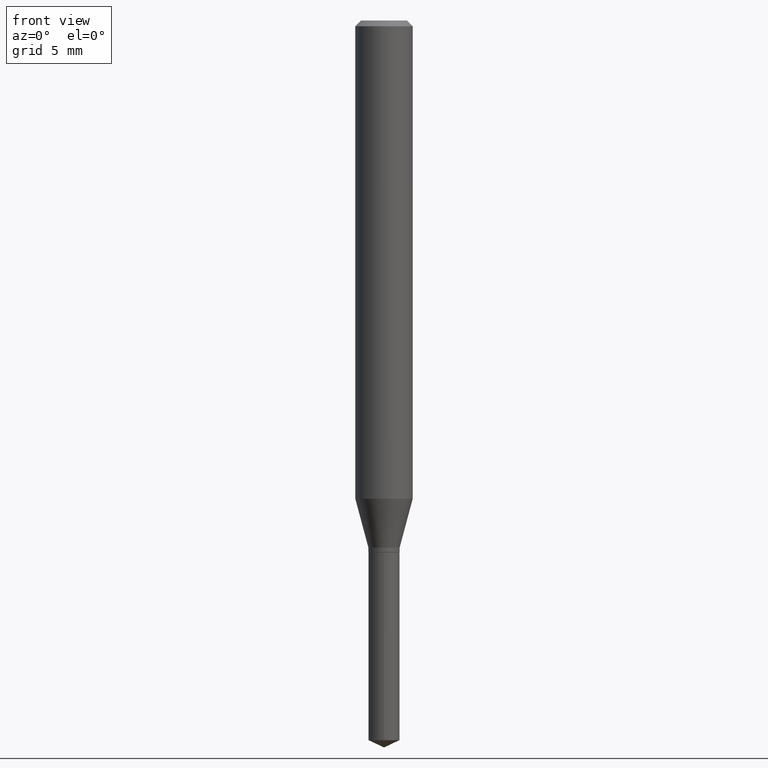
[diagram: clean part render]
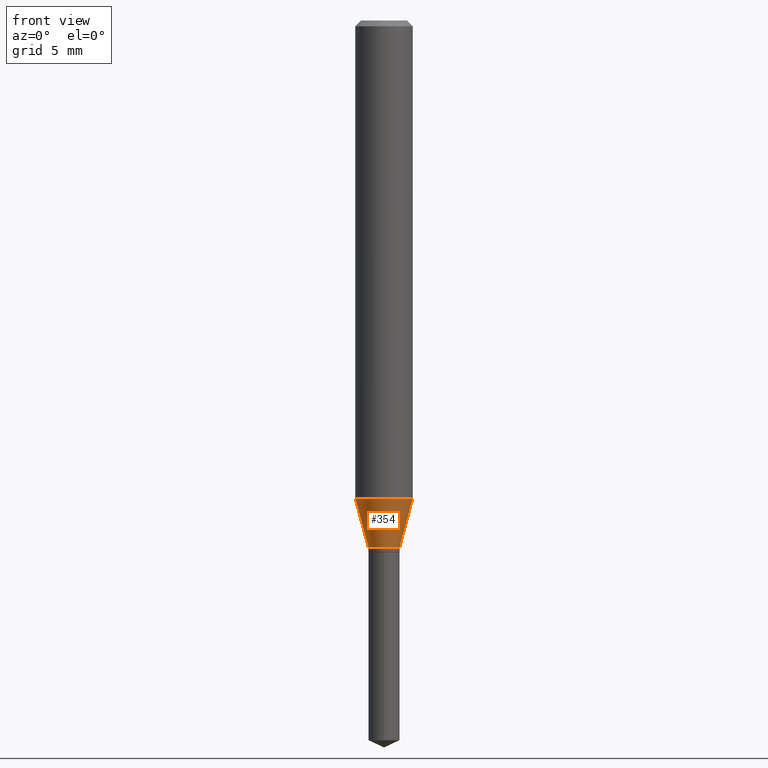
[diagram: same view with one face highlighted and labeled with its STEP entity id]
A machine part, front view. The second image highlights one B-rep face of the part: STEP entity #354.
In plain terms, the highlighted conical surface has half-angle 15 deg.
Its self-contained STEP definition (entity closure, byte-faithful):
#12 = CARTESIAN_POINT ( 'NONE',  ( -0.03209999999999999659, -3.575710126423672121E-15, -1.084899999999999975 ) ) ;
#37 = CARTESIAN_POINT ( 'NONE',  ( 2.407126865030695600E-29, -3.436739208541926354E-15, -0.9843212307360184044 ) ) ;
#40 = ORIENTED_EDGE ( 'NONE', *, *, #395, .F. ) ;
#43 = ORIENTED_EDGE ( 'NONE', *, *, #300, .T. ) ;
#44 = CARTESIAN_POINT ( 'NONE',  ( -0.05905000000000011628, -3.017163723075586861E-15, -0.9843212307360184044 ) ) ;
#52 = EDGE_LOOP ( 'NONE', ( #246, #43, #125, #40 ) ) ;
#75 = CIRCLE ( 'NONE', #351, 0.05905000000000011628 ) ;
#80 = VERTEX_POINT ( 'NONE', #252 ) ;
#89 = CARTESIAN_POINT ( 'NONE',  ( -0.03209999999999999659, -3.559823886331936833E-15, -1.084899999999999975 ) ) ;
#91 = VERTEX_POINT ( 'NONE', #120 ) ;
#120 = CARTESIAN_POINT ( 'NONE',  ( 0.03209999999999999659, -4.012061206464657274E-15, -1.084899999999999975 ) ) ;
#125 = ORIENTED_EDGE ( 'NONE', *, *, #331, .T. ) ;
#130 = AXIS2_PLACEMENT_3D ( 'NONE', #187, #149, #334 ) ;
#145 = EDGE_CURVE ( 'NONE', #254, #467, #425, .T. ) ;
#149 = DIRECTION ( 'NONE',  ( -2.445468806185136597E-29, 3.491481338843145583E-15, 1.000000000000000000 ) ) ;
#150 = CARTESIAN_POINT ( 'NONE',  ( 2.653089107830254266E-29, -3.787908104510928327E-15, -1.084899999999999975 ) ) ;
#179 = VECTOR ( 'NONE', #485, 39.37007874015748854 ) ;
#187 = CARTESIAN_POINT ( 'NONE',  ( 2.653089107830254266E-29, -3.787908104510928327E-15, -1.084899999999999975 ) ) ;
#194 = DIRECTION ( 'NONE',  ( -2.445468806185136597E-29, 3.491481338843145583E-15, 1.000000000000000000 ) ) ;
#228 = AXIS2_PLACEMENT_3D ( 'NONE', #150, #410, #301 ) ;
#243 = CONICAL_SURFACE ( 'NONE', #228, 0.03209999999999999659, 0.2617993877991498519 ) ;
#246 = ORIENTED_EDGE ( 'NONE', *, *, #145, .F. ) ;
#252 = CARTESIAN_POINT ( 'NONE',  ( 0.05905000000000011628, -3.849083154659301274E-15, -0.9843212307360184044 ) ) ;
#254 = VERTEX_POINT ( 'NONE', #12 ) ;
#270 = LINE ( 'NONE', #299, #335 ) ;
#299 = CARTESIAN_POINT ( 'NONE',  ( 0.03209999999999999659, -4.012061206464657274E-15, -1.084899999999999975 ) ) ;
#300 = EDGE_CURVE ( 'NONE', #254, #91, #329, .T. ) ;
#301 = DIRECTION ( 'NONE',  ( 1.000000000000000000, -6.982962677686263555E-15, 0.000000000000000000 ) ) ;
#305 = DIRECTION ( 'NONE',  ( 1.000000000000000000, -6.982962677686266711E-15, 0.000000000000000000 ) ) ;
#329 = CIRCLE ( 'NONE', #130, 0.03209999999999999659 ) ;
#331 = EDGE_CURVE ( 'NONE', #91, #80, #270, .T. ) ;
#334 = DIRECTION ( 'NONE',  ( 1.000000000000000000, -6.982962677686263555E-15, 0.000000000000000000 ) ) ;
#335 = VECTOR ( 'NONE', #444, 39.37007874015748854 ) ;
#344 = FACE_OUTER_BOUND ( 'NONE', #52, .T. ) ;
#351 = AXIS2_PLACEMENT_3D ( 'NONE', #37, #194, #305 ) ;
#354 = ADVANCED_FACE ( 'NONE', ( #344 ), #243, .T. ) ;
#395 = EDGE_CURVE ( 'NONE', #467, #80, #75, .T. ) ;
#410 = DIRECTION ( 'NONE',  ( -2.445468806185136597E-29, 3.491481338843145583E-15, 1.000000000000000000 ) ) ;
#425 = LINE ( 'NONE', #89, #179 ) ;
#444 = DIRECTION ( 'NONE',  ( 0.2588190451025211281, 1.565188264969622954E-15, 0.9659258262890679791 ) ) ;
#467 = VERTEX_POINT ( 'NONE', #44 ) ;
#485 = DIRECTION ( 'NONE',  ( -0.2588190451025211281, 5.211531920934547886E-15, 0.9659258262890679791 ) ) ;